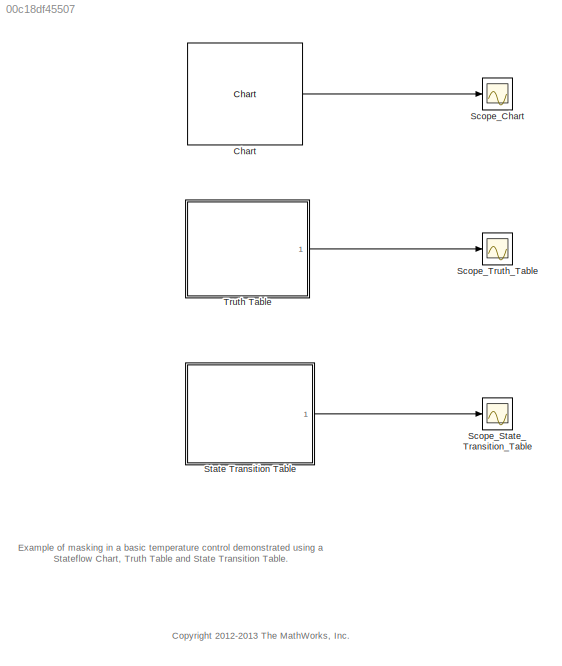
MODEL slx_00c18df45507
KIND model
CONFIG AbsTol = auto
CONFIG EnableMultiTasking = on
CONFIG FixedStep = auto
CONFIG MaxStep = 2.0
CONFIG MinStep = auto
CONFIG RelTol = 1e-3
CONFIG SampleTimeConstraint = Unconstrained
CONFIG Solver = VariableStepDiscrete
CONFIG SolverName = VariableStepDiscrete
CONFIG StartTime = 0.0
CONFIG StopTime = 300.0
BLOCK [Reference] Chart  REF=sf_mask_lib/Chart  (lib defined in slx_9e0e5dcb6251)
  Ports = [0, 1]
  SourceBlock = sf_mask_lib/Chart
  SourceProductBaseCode = SF
  SourceProductName = Stateflow
BLOCK [Scope] Scope_Chart
  NumInputPorts = 1
  Ports = [1]
  ScopeSpecificationString = Simulink.scopes.TimeScopeBlockCfg('CurrentConfiguration', extmgr.ConfigurationSet(extmgr.Configuration('Core','General UI',true),extmgr.Configuration('Core','Source UI',true),extmgr.Configuration('Sources','WiredSimulink',true,'DataLoggingSaveFormat','StructureWithTime','DataLoggingDecimation','1','DataLoggingDecimateData',true),extmgr.Configuration('Visuals','Time Domain',true,'SerializedDisplays...<+1608ch>
BLOCK [Scope] Scope_State_Transition_Table
  NumInputPorts = 1
  Ports = [1]
  ScopeSpecificationString = Simulink.scopes.TimeScopeBlockCfg('CurrentConfiguration', extmgr.ConfigurationSet(extmgr.Configuration('Core','General UI',true),extmgr.Configuration('Core','Source UI',true),extmgr.Configuration('Sources','WiredSimulink',true,'DataLoggingVariableName','ScopeData2','DataLoggingSaveFormat','StructureWithTime','DataLoggingLimitDataPoints',true,'DataLoggingDecimation','1','DataLoggingDecimateData',tr...<+911ch>
BLOCK [Scope] Scope_Truth_Table
  NumInputPorts = 1
  Ports = [1]
  ScopeSpecificationString = Simulink.scopes.TimeScopeBlockCfg('CurrentConfiguration', extmgr.ConfigurationSet(extmgr.Configuration('Core','General UI',true),extmgr.Configuration('Core','Source UI',true),extmgr.Configuration('Sources','WiredSimulink',true,'DataLoggingVariableName','ScopeData1','DataLoggingSaveFormat','StructureWithTime','DataLoggingDecimation','1','DataLoggingDecimateData',true),extmgr.Configuration('Visuals'...<+876ch>
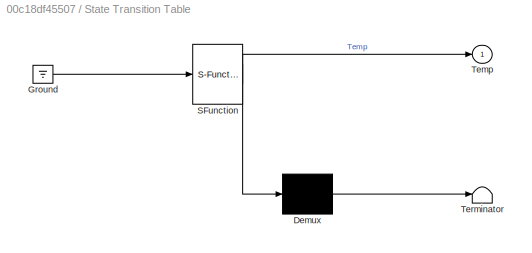
BLOCK [SubSystem] State Transition Table
  ErrorFcn = Stateflow.Translate.translate
  PermitHierarchicalResolution = ExplicitOnly
  Ports = [0, 1]
  RequestExecContextInheritance = off
  SFBlockType = State Transition Table
  TreatAsAtomicUnit = on
  Variant = off
BLOCK [Demux] State Transition Table/ Demux 
  Outputs = 1
  Ports = [1, 1]
BLOCK [Ground] State Transition Table/ Ground 
BLOCK [S-Function] State Transition Table/ SFunction 
  EnableBusSupport = off
  FunctionName = sf_sfun
  Parameters = AmbTemp,DesiredTemp,btuValue
  PortCounts = [1 2]
  Ports = [1, 2]
  SFcnIsStateOwnerBlock = off
  SFunctionDeploymentMode = off
  Tag = Stateflow S-Function sf_mask_basic 4
BLOCK [Terminator] State Transition Table/ Terminator 
BLOCK [Outport] State Transition Table/Temp
  IconDisplay = Port number
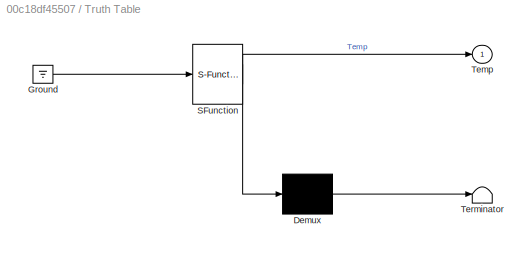
BLOCK [SubSystem] Truth Table
  ErrorFcn = Stateflow.Translate.translate
  PermitHierarchicalResolution = ExplicitOnly
  Ports = [0, 1]
  RequestExecContextInheritance = off
  SFBlockType = Truth Table
  TreatAsAtomicUnit = on
  Variant = off
BLOCK [Demux] Truth Table/ Demux 
  Outputs = 1
  Ports = [1, 1]
BLOCK [Ground] Truth Table/ Ground 
BLOCK [S-Function] Truth Table/ SFunction 
  EnableBusSupport = off
  FunctionName = sf_sfun
  Parameters = AmbTemp,DesiredTemp,btuValue
  PortCounts = [1 2]
  Ports = [1, 2]
  SFcnIsStateOwnerBlock = off
  SFunctionDeploymentMode = off
  Tag = Stateflow S-Function sf_mask_basic 2
BLOCK [Terminator] Truth Table/ Terminator 
BLOCK [Outport] Truth Table/Temp
  IconDisplay = Port number
ANNOTATION (root): <copyright redacted>
ANNOTATION (root): Example of masking in a basic temperature control demonstrated using a Stateflow Chart, Truth Table and State Transition Table.
LINE Chart:1 -> Scope_Chart:1
LINE State Transition Table:1 -> Scope_State_Transition_Table:1
LINE Truth Table:1 -> Scope_Truth_Table:1
CHART Truth Table states=1 transitions=1
  STATE_LABEL 'tt_blk_kernel'
  STATE_LABEL 'SCRIPT:\nfunction Temp = fcn(AmbTemp, DesiredTemp, btuValue)\n\nINIT();\n\naVarTruthTableCondition_1 = false;\n\n\n% Temperature is Less than Desired\n\naVarTruthTableCondition_1 = logical(TempStore < DesiredTemp);\n\nif (aVarTruthTableCondition_1)\n    AC_OFF();\nelse % Default\n    AC_ON();\nend\n\nfunction INIT()\n\n\nTemp = TempStore;\n\nfunction AC_ON()\n\n% AC is ON\n\nTempStore = Temp - btuValue/20000;\n\nfunction AC_O...<+61ch>'
CHART State Transition Table states=2 transitions=3
  STATE_LABEL 'AC_OFF\nentry,during:Temp = Temp + 0.05*(AmbTemp - Temp);'
  STATE_LABEL 'AC_ON\nentry,during:Temp = Temp - btuValue/20000;'
